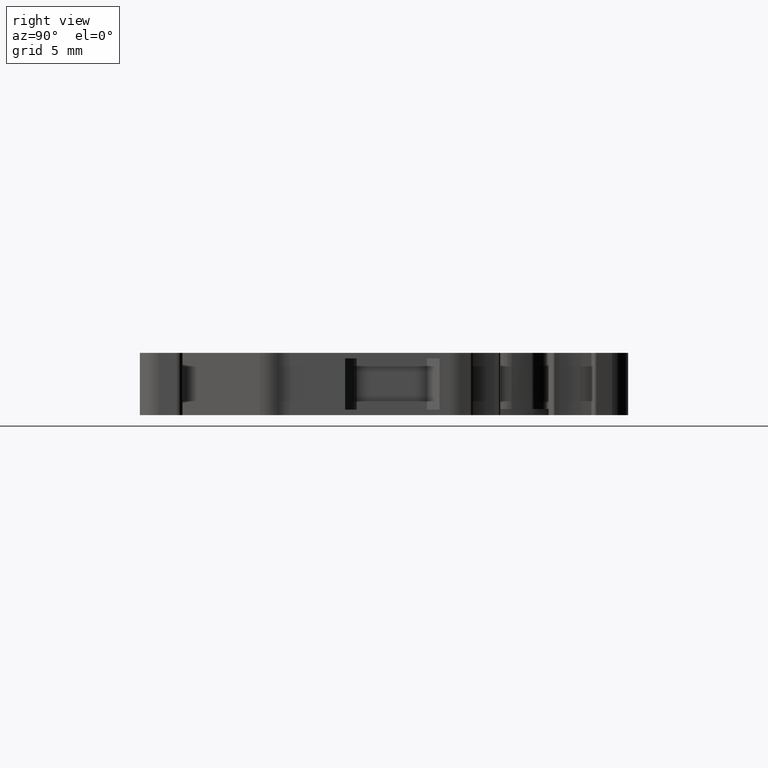
[diagram: clean part render]
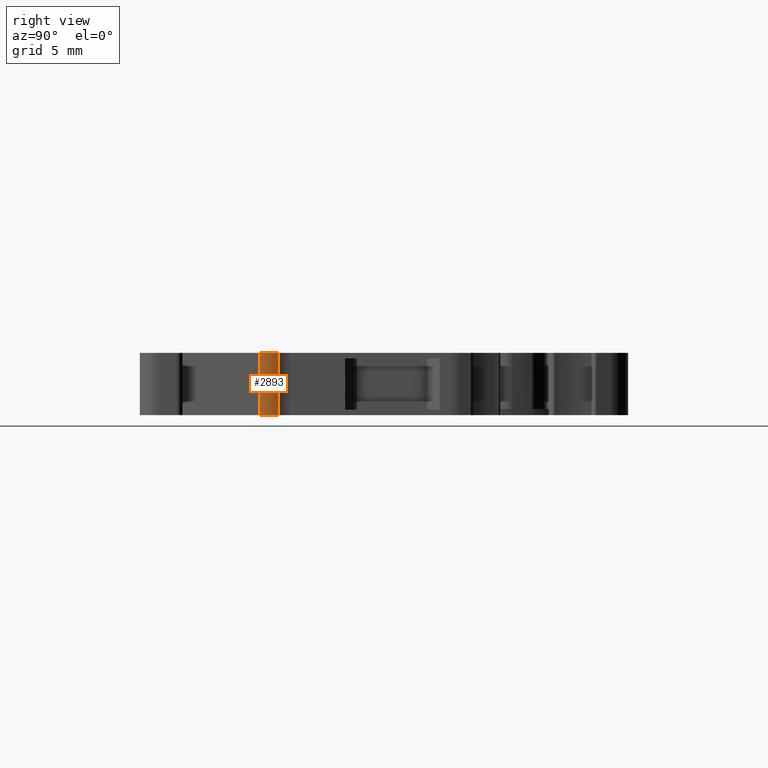
[diagram: same view with one face highlighted and labeled with its STEP entity id]
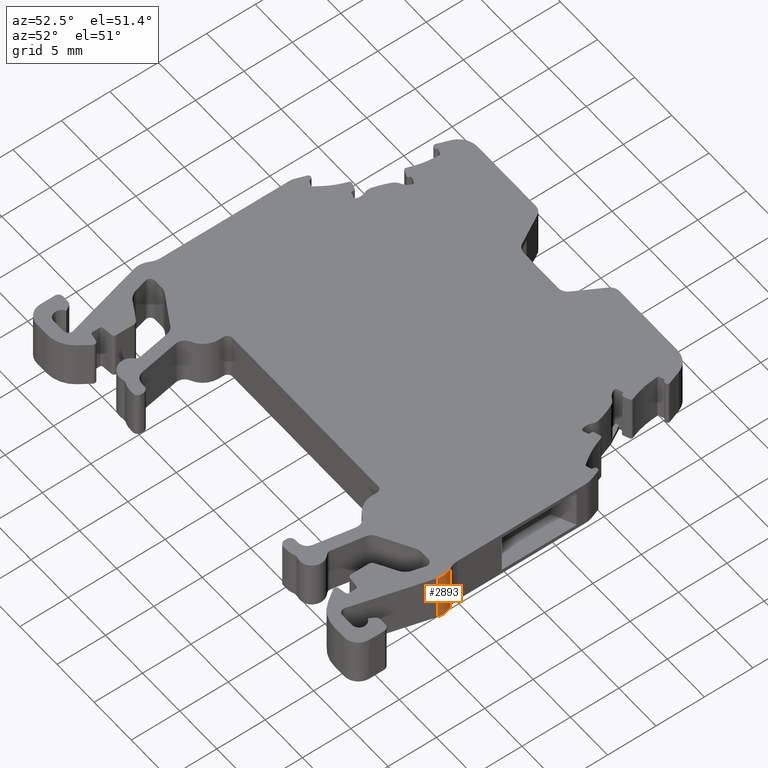
[diagram: same view with one face highlighted and labeled with its STEP entity id]
A machine part, right view. The second image highlights one B-rep face of the part: STEP entity #2893.
A second angle (auxiliary view) of the same face is appended — the face is thin or edge-on in the first view.
In plain terms, the highlighted cylindrical surface (edge-blend (fillet) strip) has radius 2 mm, axis along (0, 0, -1).
Its self-contained STEP definition (entity closure, byte-faithful):
#691 = EDGE_LOOP ( 'NONE', ( #5464, #5395, #5390, #5364 ) ) ;
#1156 = VERTEX_POINT ( 'NONE', #5920 ) ;
#1161 = VERTEX_POINT ( 'NONE', #5958 ) ;
#1214 = VERTEX_POINT ( 'NONE', #6023 ) ;
#1263 = VERTEX_POINT ( 'NONE', #6012 ) ;
#2893 = ADVANCED_FACE ( 'NONE', ( #6660 ), #6624, .T. ) ;
#3632 = EDGE_CURVE ( 'NONE', #1161, #1214, #7112, .T. ) ;
#3646 = EDGE_CURVE ( 'NONE', #1156, #1263, #7260, .T. ) ;
#3663 = EDGE_CURVE ( 'NONE', #1214, #1156, #4377, .T. ) ;
#3685 = EDGE_CURVE ( 'NONE', #1161, #1263, #4444, .T. ) ;
#4255 = CARTESIAN_POINT ( 'NONE',  ( 1478.671881204879800, 927.8254651681002100, -48.05000000000000400 ) ) ;
#4256 = DIRECTION ( 'NONE',  ( -1.000000000000000000, 1.665336445098738500E-013, 0.0000000000000000000 ) ) ;
#4268 = DIRECTION ( 'NONE',  ( -0.0000000000000000000, -0.0000000000000000000, 1.000000000000000000 ) ) ;
#4318 = DIRECTION ( 'NONE',  ( -1.000000000000000000, 0.0000000000000000000, 0.0000000000000000000 ) ) ;
#4332 = DIRECTION ( 'NONE',  ( 0.0000000000000000000, 0.0000000000000000000, -1.000000000000000000 ) ) ;
#4335 = CARTESIAN_POINT ( 'NONE',  ( 1478.671881204879800, 927.8254651681002100, -42.94999999999999600 ) ) ;
#4376 = DIRECTION ( 'NONE',  ( -0.0000000000000000000, -0.0000000000000000000, 1.000000000000000000 ) ) ;
#4377 = LINE ( 'NONE', #4397, #7248 ) ;
#4397 = CARTESIAN_POINT ( 'NONE',  ( 1480.424978088482000, 928.7880877058689700, 9.037842237415203400 ) ) ;
#4432 = CARTESIAN_POINT ( 'NONE',  ( 1480.603740483389900, 927.3078643938079000, 9.037842237415203400 ) ) ;
#4440 = DIRECTION ( 'NONE',  ( -0.0000000000000000000, 0.0000000000000000000, 1.000000000000000000 ) ) ;
#4444 = LINE ( 'NONE', #4432, #7336 ) ;
#5364 = ORIENTED_EDGE ( 'NONE', *, *, #3663, .T. ) ;
#5390 = ORIENTED_EDGE ( 'NONE', *, *, #3632, .T. ) ;
#5395 = ORIENTED_EDGE ( 'NONE', *, *, #3685, .F. ) ;
#5464 = ORIENTED_EDGE ( 'NONE', *, *, #3646, .T. ) ;
#5920 = CARTESIAN_POINT ( 'NONE',  ( 1480.424978088482000, 928.7880877058690900, -42.94999999999999600 ) ) ;
#5958 = CARTESIAN_POINT ( 'NONE',  ( 1480.603740498712600, 927.3078644509964800, -48.05000000000000400 ) ) ;
#6012 = CARTESIAN_POINT ( 'NONE',  ( 1480.603740498712600, 927.3078644509964800, -42.94999999999999600 ) ) ;
#6023 = CARTESIAN_POINT ( 'NONE',  ( 1480.424978088482000, 928.7880877058690900, -48.05000000000000400 ) ) ;
#6624 = CYLINDRICAL_SURFACE ( 'NONE', #7922, 1.999997708377776500 ) ;
#6626 = DIRECTION ( 'NONE',  ( -1.000000000000000000, 0.0000000000000000000, 0.0000000000000000000 ) ) ;
#6659 = DIRECTION ( 'NONE',  ( 0.0000000000000000000, 0.0000000000000000000, -1.000000000000000000 ) ) ;
#6660 = FACE_OUTER_BOUND ( 'NONE', #691, .T. ) ;
#6661 = CARTESIAN_POINT ( 'NONE',  ( 1478.671881204879800, 927.8254651681002100, 9.037842237415203400 ) ) ;
#7108 = AXIS2_PLACEMENT_3D ( 'NONE', #4255, #4268, #4256 ) ;
#7112 = CIRCLE ( 'NONE', #7108, 1.999997708377776500 ) ;
#7216 = AXIS2_PLACEMENT_3D ( 'NONE', #4335, #4332, #4318 ) ;
#7248 = VECTOR ( 'NONE', #4376, 1000.000000000000000 ) ;
#7260 = CIRCLE ( 'NONE', #7216, 1.999997708377776500 ) ;
#7336 = VECTOR ( 'NONE', #4440, 1000.000000000000000 ) ;
#7922 = AXIS2_PLACEMENT_3D ( 'NONE', #6661, #6659, #6626 ) ;